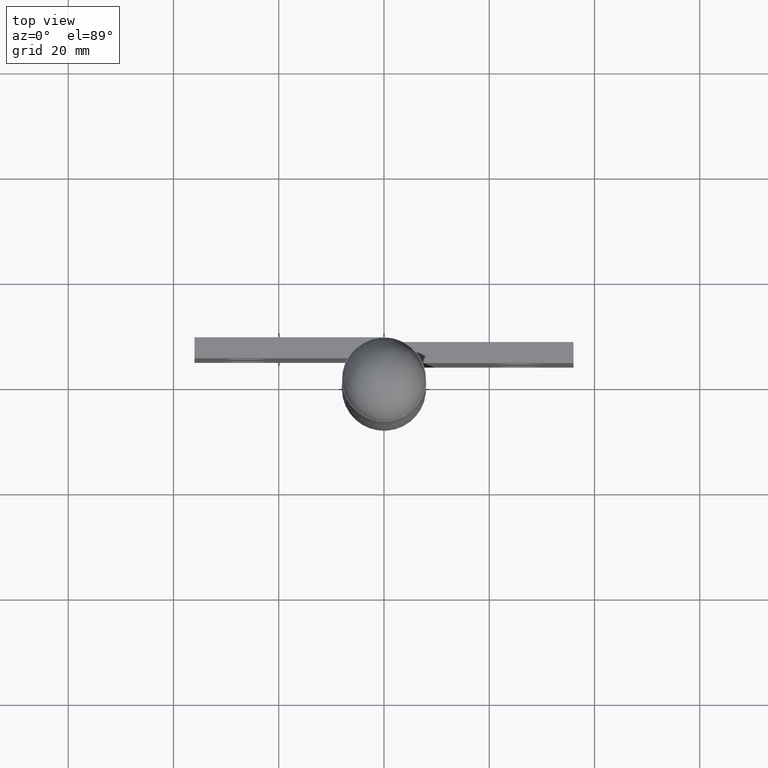
[diagram: clean part render]
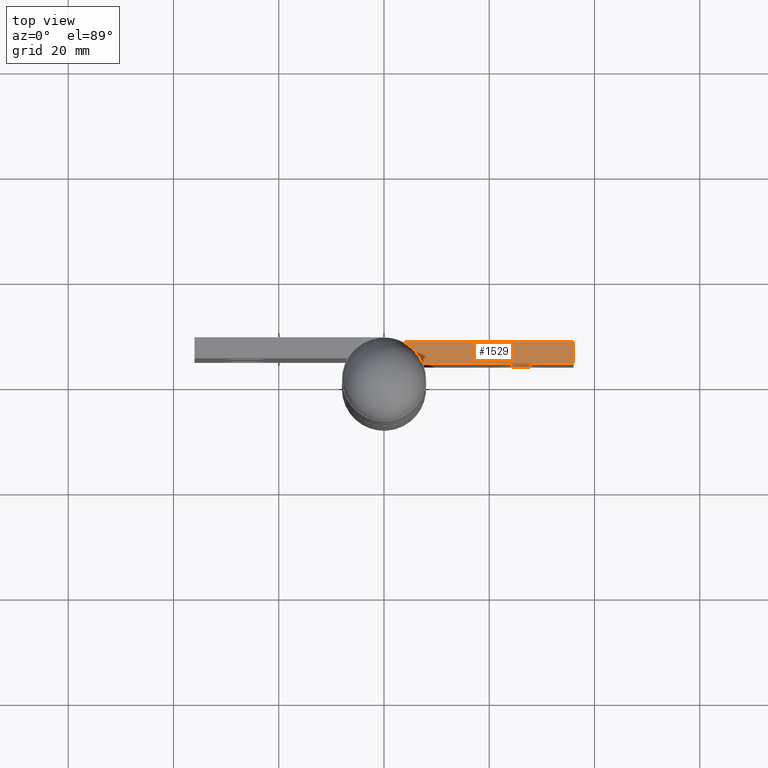
[diagram: same view with one face highlighted and labeled with its STEP entity id]
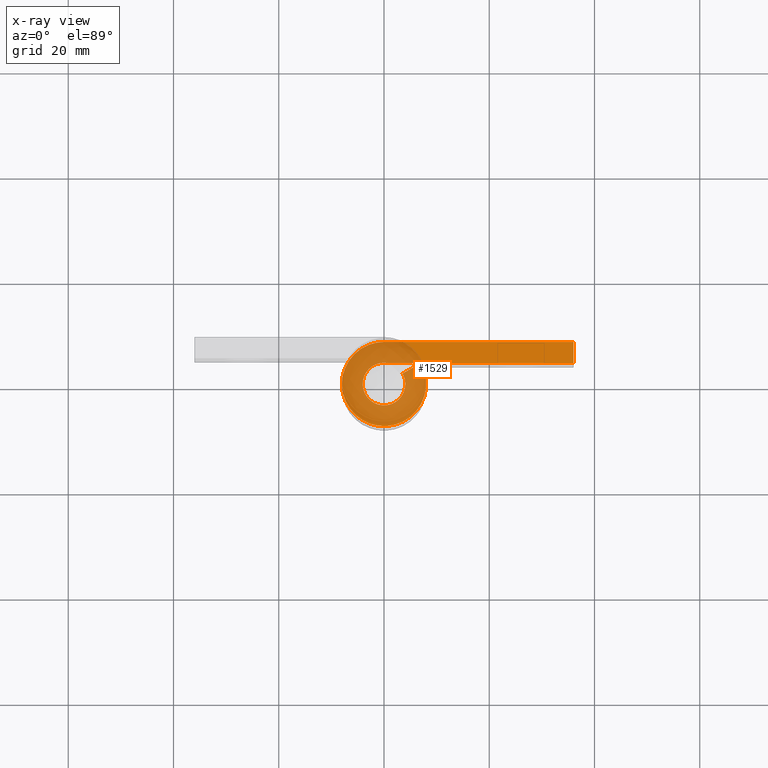
[diagram: x-ray of the same camera — body ghosted, the highlighted face saturated]
A machine part, top view. The second image highlights one B-rep face of the part: STEP entity #1529.
The next image is the same camera in x-ray: the body ghosted, the highlighted face saturated — about 54% of this face is hidden behind the body in this view.
In plain terms, the highlighted face is a freeform B-spline surface patch.
Its self-contained STEP definition (entity closure, byte-faithful):
#1452=CARTESIAN_POINT('',(-10.197780629572071,-8.799121471922923,50.0));
#1453=CARTESIAN_POINT('',(38.197800177425272,-8.799121471922923,50.0));
#1454=CARTESIAN_POINT('',(-10.197780629572080,8.799196663745073,50.0));
#1455=CARTESIAN_POINT('',(38.197800177425272,8.799196663745073,50.0));
#1456=B_SPLINE_SURFACE_WITH_KNOTS('',1,1,((#1452,#1454),(#1453,#1455)),.UNSPECIFIED.,.F.,.F.,.U.,(2,2),(2,2),(0.0,48.395580806997337),(0.0,17.598318135667999),.UNSPECIFIED.);
#1457=CARTESIAN_POINT('',(6.956831175183141,3.950000000000000,50.0));
#1458=VERTEX_POINT('',#1457);
#1459=CARTESIAN_POINT('',(0.0,8.0,50.0));
#1460=VERTEX_POINT('',#1459);
#1461=CARTESIAN_POINT('',(6.956831175183138,3.950000000000002,50.0));
#1462=CARTESIAN_POINT('',(9.982126981727548,-1.378220805346568,50.0));
#1463=CARTESIAN_POINT('',(5.626216515532542,-5.687326939815300,50.0));
#1464=CARTESIAN_POINT('',(1.270306049337542,-9.996433074284029,50.0));
#1465=CARTESIAN_POINT('',(-4.024922359499616,-6.913754406977446,50.0));
#1466=CARTESIAN_POINT('',(-9.320150768336777,-3.831075739670861,50.0));
#1467=CARTESIAN_POINT('',(-7.723666074339943,2.084462130164569,50.0));
#1468=CARTESIAN_POINT('',(-6.127181380343109,8.0,50.0));
#1469=CARTESIAN_POINT('',(0.0,8.0,50.0));
#1477=(BOUNDED_CURVE()B_SPLINE_CURVE(2,(#1461,#1462,#1463,#1464,#1465,#1466,#1467,#1468,#1469),.UNSPECIFIED.,.F.,.U.)B_SPLINE_CURVE_WITH_KNOTS((3,2,2,2,3),(0.0,0.250000000000000,0.500000000000000,0.750000000000000,1.0),.UNSPECIFIED.)CURVE()GEOMETRIC_REPRESENTATION_ITEM()RATIONAL_B_SPLINE_CURVE((1.0,0.793901053743655,1.0,0.793901053743655,1.0,0.793901053743655,1.0,0.793901053743655,1.0))REPRESENTATION_ITEM(''));
#1478=EDGE_CURVE('',#1458,#1460,#1477,.T.);
#1479=ORIENTED_EDGE('',*,*,#1478,.F.);
#1480=CARTESIAN_POINT('',(3.521895782436465,1.999687500000000,50.0));
#1481=VERTEX_POINT('',#1480);
#1482=CARTESIAN_POINT('',(3.521895782436465,1.999687500000000,50.0));
#1483=CARTESIAN_POINT('',(6.956831175183141,3.950000000000000,50.0));
#1484=QUASI_UNIFORM_CURVE('',1,(#1482,#1483),.UNSPECIFIED.,.F.,.U.);
#1485=EDGE_CURVE('',#1481,#1458,#1484,.T.);
#1486=ORIENTED_EDGE('',*,*,#1485,.F.);
#1487=CARTESIAN_POINT('',(0.634428877022476,4.0,50.0));
#1488=VERTEX_POINT('',#1487);
#1489=CARTESIAN_POINT('',(3.521895782436463,1.999687500000001,50.0));
#1490=CARTESIAN_POINT('',(5.116795915475714,-0.809287428311692,50.0));
#1491=CARTESIAN_POINT('',(2.732876585264104,-2.988960616956204,50.0));
#1492=CARTESIAN_POINT('',(0.348957255052492,-5.168633805600718,50.0));
#1493=CARTESIAN_POINT('',(-2.306311165719119,-3.329178398175639,50.0));
#1494=CARTESIAN_POINT('',(-4.961579586490725,-1.489722990750566,50.0));
#1495=CARTESIAN_POINT('',(-3.758724729863242,1.508140711311282,50.0));
#1496=CARTESIAN_POINT('',(-2.555869873235757,4.506004413373134,50.0));
#1497=CARTESIAN_POINT('',(0.634428877022475,4.0,50.0));
#1505=(BOUNDED_CURVE()B_SPLINE_CURVE(2,(#1489,#1490,#1491,#1492,#1493,#1494,#1495,#1496,#1497),.UNSPECIFIED.,.F.,.U.)B_SPLINE_CURVE_WITH_KNOTS((3,2,2,2,3),(0.0,0.250000000000000,0.500000000000000,0.750000000000000,1.0),.UNSPECIFIED.)CURVE()GEOMETRIC_REPRESENTATION_ITEM()RATIONAL_B_SPLINE_CURVE((1.0,0.781792876462162,1.0,0.781792876462162,1.0,0.781792876462162,1.0,0.781792876462162,1.0))REPRESENTATION_ITEM(''));
#1506=EDGE_CURVE('',#1481,#1488,#1505,.T.);
#1507=ORIENTED_EDGE('',*,*,#1506,.T.);
#1508=CARTESIAN_POINT('',(36.0,4.0,50.0));
#1509=VERTEX_POINT('',#1508);
#1510=CARTESIAN_POINT('',(36.0,4.0,50.0));
#1511=CARTESIAN_POINT('',(0.634428877022476,4.0,50.0));
#1512=QUASI_UNIFORM_CURVE('',1,(#1510,#1511),.UNSPECIFIED.,.F.,.U.);
#1513=EDGE_CURVE('',#1509,#1488,#1512,.T.);
#1514=ORIENTED_EDGE('',*,*,#1513,.F.);
#1515=CARTESIAN_POINT('',(36.0,8.0,50.0));
#1516=VERTEX_POINT('',#1515);
#1517=CARTESIAN_POINT('',(36.0,8.0,50.0));
#1518=CARTESIAN_POINT('',(36.0,4.0,50.0));
#1519=QUASI_UNIFORM_CURVE('',1,(#1517,#1518),.UNSPECIFIED.,.F.,.U.);
#1520=EDGE_CURVE('',#1516,#1509,#1519,.T.);
#1521=ORIENTED_EDGE('',*,*,#1520,.F.);
#1522=CARTESIAN_POINT('',(0.0,8.0,50.0));
#1523=CARTESIAN_POINT('',(36.0,8.0,50.0));
#1524=QUASI_UNIFORM_CURVE('',1,(#1522,#1523),.UNSPECIFIED.,.F.,.U.);
#1525=EDGE_CURVE('',#1460,#1516,#1524,.T.);
#1526=ORIENTED_EDGE('',*,*,#1525,.F.);
#1527=EDGE_LOOP('',(#1479,#1486,#1507,#1514,#1521,#1526));
#1528=FACE_OUTER_BOUND('',#1527,.T.);
#1529=ADVANCED_FACE('',(#1528),#1456,.T.);